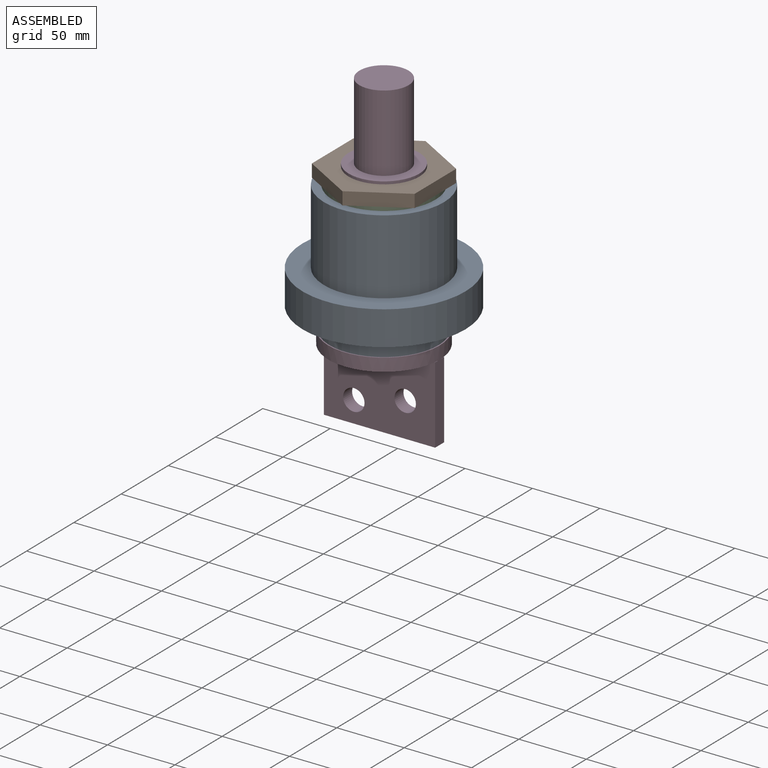
[diagram: assembled view]
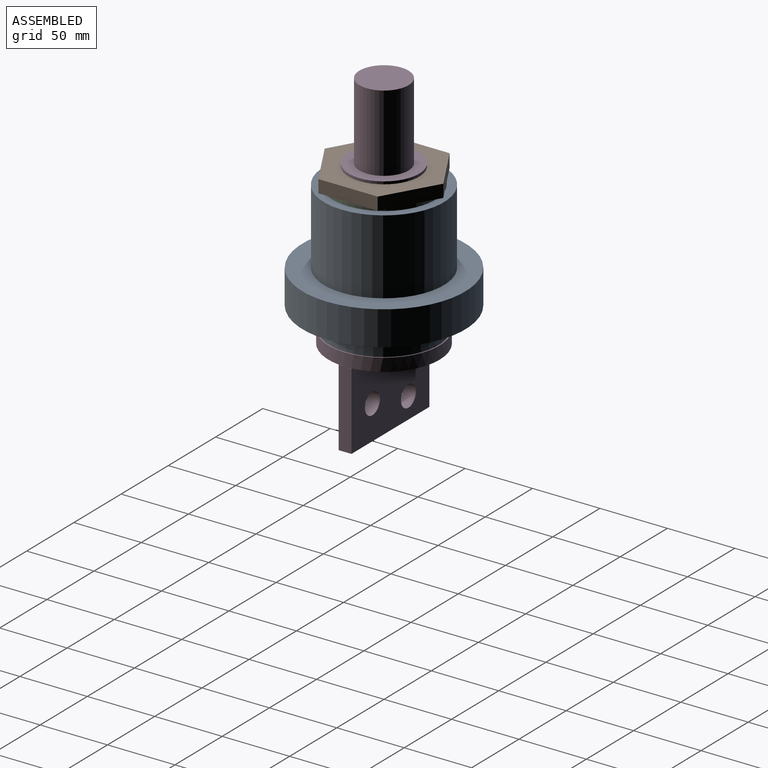
[diagram: assembled view, second angle]
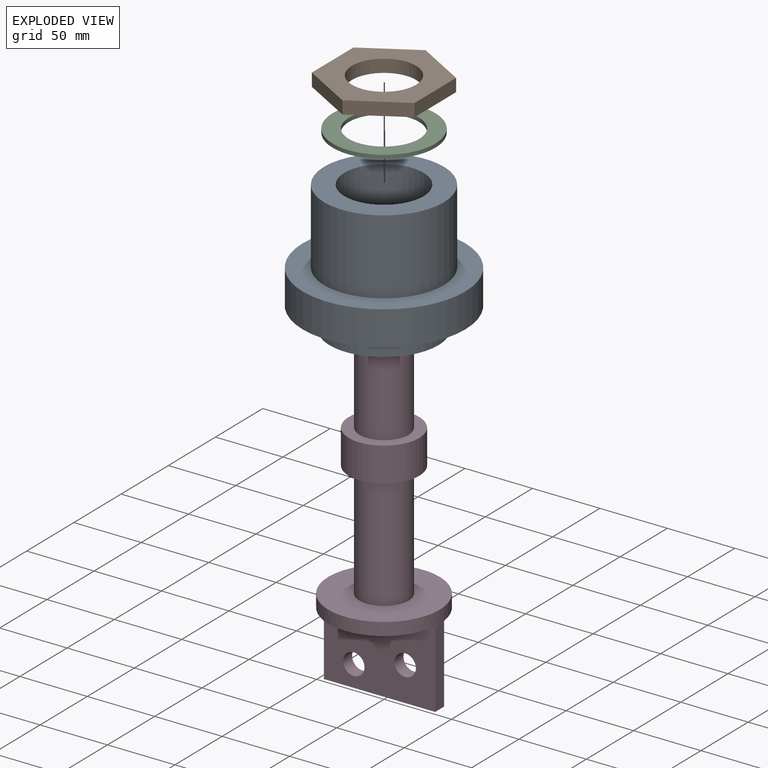
[diagram: exploded view]
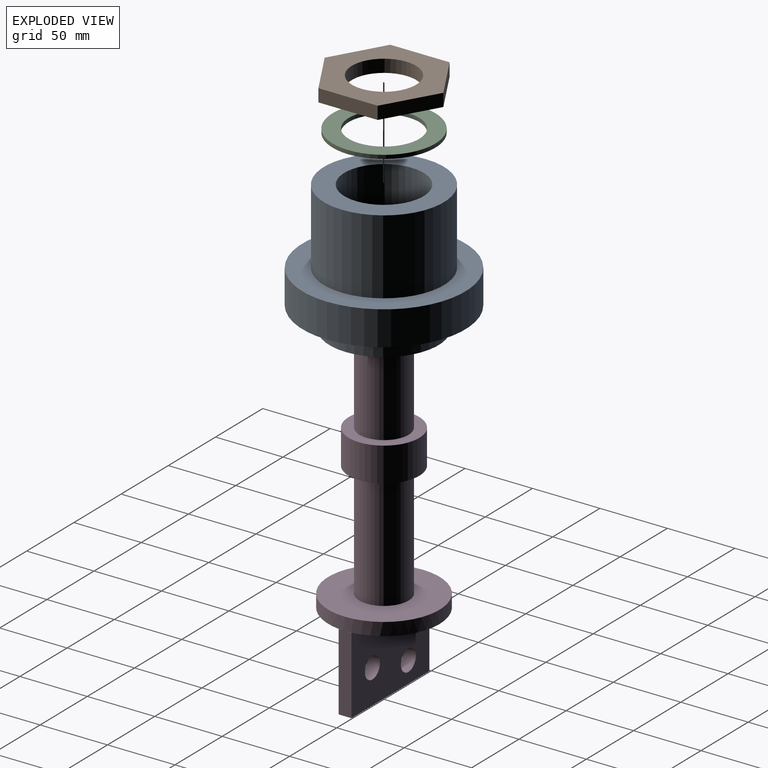
[diagram: exploded view, second angle]
ASSEMBLY  parts=4 mates=3
PART A: 8 faces, bbox 96.8x120.7x120.7 mm
  f0: cylinder r=29.37mm len=96.84mm, axis (1,0,0), area 17869.4mm2, adj f1,f7
  f1: plane 88.9x88.9mm, normal (1,0,0), area 3497.5mm2, adj f0,f2
  f2: cylinder r=44.45mm len=88.9mm, axis (1,0,0), area 15517.9mm2, adj f1,f3
  f3: plane 120.65x120.65mm, normal (1,0,0), area 5225.4mm2, adj f2,f4
  f4: cylinder r=60.32mm len=120.65mm, axis (1,0,0), area 9627.4mm2, adj f3,f5
  f5: plane 120.65x120.65mm, normal (-1,0,0), area 6284.4mm2, adj f4,f6
  f6: cylinder r=40.48mm len=80.96mm, axis (1,0,0), area 4037.8mm2, adj f5,f7
  f7: plane 80.96x80.96mm, normal (-1,0,0), area 2438.5mm2, adj f0,f6
PART B: 9 faces, bbox 9.5x88x76.2 mm
  f0: plane 38.1x22mm, normal (0,0.87,-0.5), area 419mm2, adj f1,f6,f7,f8
  f1: plane 38.1x22mm, normal (0,0.87,0.5), area 419mm2, adj f0,f2,f7,f8
  f2: plane 43.99x9.53mm, normal (0,0,1), area 419mm2, adj f1,f3,f7,f8
  f3: plane 38.1x22mm, normal (0,-0.87,0.5), area 419mm2, adj f2,f4,f7,f8
  f4: plane 38.1x22mm, normal (0,-0.87,-0.5), area 419mm2, adj f3,f6,f7,f8
  f5: cylinder r=23.81mm len=47.63mm, axis (-1,0,0), area 1425.1mm2, adj f7,f8
  f6: plane 43.99x9.53mm, normal (0,0,-1), area 419mm2, adj f0,f4,f7,f8
  f7: plane 87.99x76.2mm, normal (1,0,0), area 3247.1mm2, adj f0,f1,f2,f3,f4,f5,f6
  f8: plane 87.99x76.2mm, normal (-1,0,0), area 3247.1mm2, adj f0,f1,f2,f3,f4,f5,f6
PART C: 4 faces, bbox 2.8x76.2x76.2 mm
  f0: cylinder r=38.1mm len=76.2mm, axis (-1,0,0), area 665.1mm2, adj f2,f3
  f1: cylinder r=26.19mm len=52.39mm, axis (-1,0,0), area 457.2mm2, adj f2,f3
  f2: plane 76.2x76.2mm, normal (1,0,0), area 2404.9mm2, adj f0,f1
  f3: plane 76.2x76.2mm, normal (-1,0,0), area 2404.9mm2, adj f0,f1
PART D: 21 faces, bbox 235x82.6x82.6 mm
  f0: plane 82x36.51mm, normal (-1,0,0), area 2283.8mm2, adj f4,f19
  f1: plane 52.39x52.39mm, normal (-1,0,0), area 1108.4mm2, adj f2,f9
  f2: cylinder r=18.26mm len=85.73mm, axis (-1,0,0), area 9833.3mm2, adj f1,f3
  f3: plane 82.55x82.55mm, normal (1,0,0), area 4305mm2, adj f2,f4
  f4: cylinder r=41.27mm len=82.55mm, axis (-1,0,0), area 2470.2mm2, adj f0,f3,f5,f10,f11,f12,f13
  f5: plane 82x36.51mm, normal (-1,0,0), area 2283.8mm2, adj f4,f20
  f6: plane 36.51x36.51mm, normal (1,0,0), area 1047.1mm2, adj f7
  f7: cylinder r=18.26mm len=57.15mm, axis (-1,0,0), area 6555.5mm2, adj f6,f8
  f8: plane 52.39x52.39mm, normal (1,0,0), area 1108.4mm2, adj f7,f9
  f9: cylinder r=26.19mm len=52.39mm, axis (-1,0,0), area 4180.3mm2, adj f1,f8
  f10: plane 4.76x0.28mm, normal (1,0,0), area 0.4mm2, adj f4,f17,f20
  f11: plane 4.76x0.28mm, normal (1,0,0), area 0.4mm2, adj f4,f17,f19
  f12: plane 4.76x0.28mm, normal (1,0,0), area 0.4mm2, adj f4,f14,f20
  f13: plane 4.76x0.28mm, normal (1,0,0), area 0.4mm2, adj f4,f14,f19
  f14: plane 57.15x9.53mm, normal (0,0,1), area 544.4mm2, adj f12,f13,f15,f19,f20
  f15: plane 82.55x9.53mm, normal (-1,0,0), area 786.3mm2, adj f14,f17,f19,f20
  f16: cylinder r=7.94mm len=15.88mm, axis (0,1,0), area 475mm2, adj f19,f20
  f17: plane 57.15x9.53mm, normal (0,0,-1), area 544.4mm2, adj f10,f11,f15,f19,f20
  f18: cylinder r=7.94mm len=15.88mm, axis (0,1,0), area 475mm2, adj f19,f20
  f19: plane 82.55x57.15mm, normal (0,-1,0), area 4321.9mm2, adj f0,f11,f13,f14,f15,f16,f17,f18
  f20: plane 82.55x57.15mm, normal (0,1,0), area 4321.9mm2, adj f5,f10,f12,f14,f15,f16,f17,f18
PLACE A rot(axis=(0,-1,0),90deg) t=(946.15,238.13,-660.4)mm
PLACE B rot(axis=(0,-1,0),90deg) t=(946.15,238.13,-660.4)mm
PLACE C rot(axis=(0,-1,0),90deg) t=(946.15,238.13,-660.4)mm
PLACE D rot(axis=(0,-1,0),90deg) t=(946.15,238.13,-660.4)mm
MATE fastened A.f0 <-> D.f2  axis (0,0,-1) through (0,0,-15.88)mm
MATE fastened C.f0 <-> A.f0  axis (0,0,-1) through (0,0,80.96)mm
MATE fastened B.f5 <-> C.f0  axis (0,0,-1) through (0,0,83.74)mm
